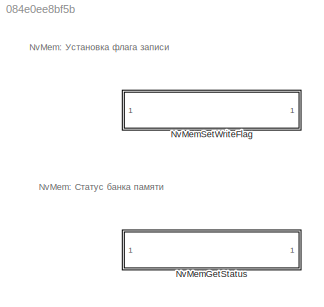
MODEL slx_084e0ee8bf5b
KIND library
CONFIG AbsTol = auto
CONFIG EnableMultiTasking = off
CONFIG FixedStep = auto
CONFIG MaxStep = auto
CONFIG MinStep = auto
CONFIG RelTol = 1e-3
CONFIG SampleTimeConstraint = Unconstrained
CONFIG SolverName = VariableStepAuto
CONFIG StartTime = 0.0
CONFIG StopTime = 10.0
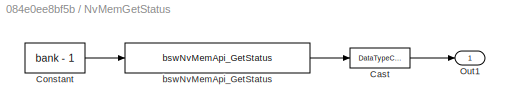
BLOCK [SubSystem] NvMemGetStatus
  TreatAsAtomicUnit = on
BLOCK [DataTypeConversion] NvMemGetStatus/Cast
  OutDataTypeStr = Enum: Statuses
  RndMeth = Simplest
  SaturateOnIntegerOverflow = off
BLOCK [Constant] NvMemGetStatus/Constant
  OutDataTypeStr = uint8
  Value = bank - 1
BLOCK [Outport] NvMemGetStatus/Out1
  OutDataTypeStr = Enum: Statuses
BLOCK [Reference] NvMemGetStatus/bswNvMemApi_GetStatus  REF=nvmem_bswapi/bswNvMemApi_GetStatus
  SourceBlock = nvmem_bswapi/bswNvMemApi_GetStatus
  SourceType = CCaller
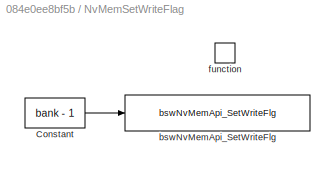
BLOCK [SubSystem] NvMemSetWriteFlag
BLOCK [Constant] NvMemSetWriteFlag/Constant
  OutDataTypeStr = uint8
  Value = bank - 1
BLOCK [Reference] NvMemSetWriteFlag/bswNvMemApi_SetWriteFlg  REF=nvmem_bswapi/bswNvMemApi_SetWriteFlg
  SourceBlock = nvmem_bswapi/bswNvMemApi_SetWriteFlg
  SourceType = CCaller
BLOCK [TriggerPort] NvMemSetWriteFlag/function
  StatesWhenEnabling = held
  TriggerType = function-call
  VariantControl = (inherit)
ANNOTATION (root): NvMem: Статус банка памяти
ANNOTATION (root): NvMem: Установка флага записи
LINE NvMemGetStatus/Cast:1 -> NvMemGetStatus/Out1:1
LINE NvMemGetStatus/Constant:1 -> NvMemGetStatus/bswNvMemApi_GetStatus:1
LINE NvMemGetStatus/bswNvMemApi_GetStatus:1 -> NvMemGetStatus/Cast:1
LINE NvMemSetWriteFlag/Constant:1 -> NvMemSetWriteFlag/bswNvMemApi_SetWriteFlg:1
